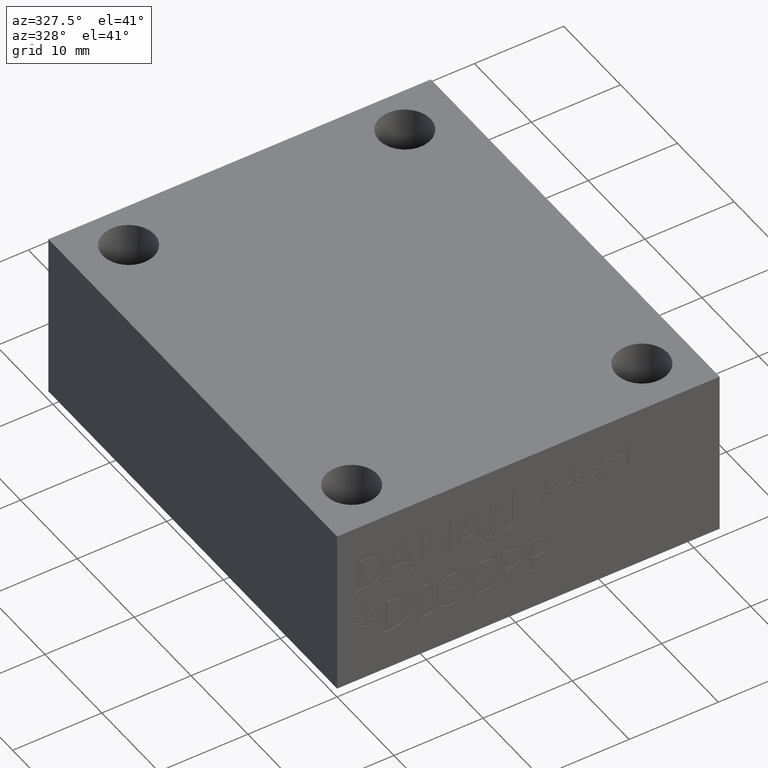
[diagram: clean part render]
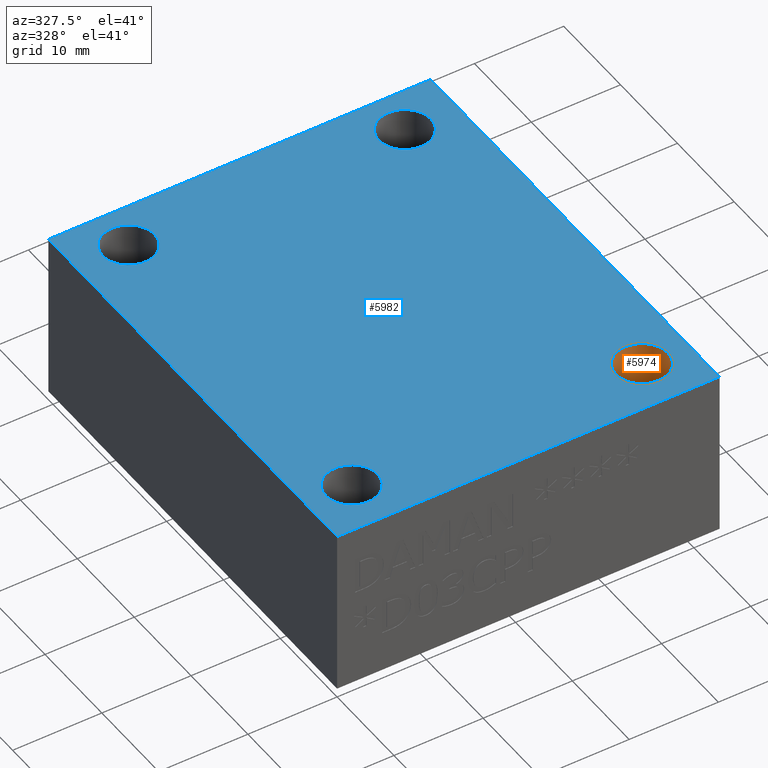
[diagram: same view with the hole feature highlighted: cylindrical wall and planar end face, labeled with their STEP entity ids]
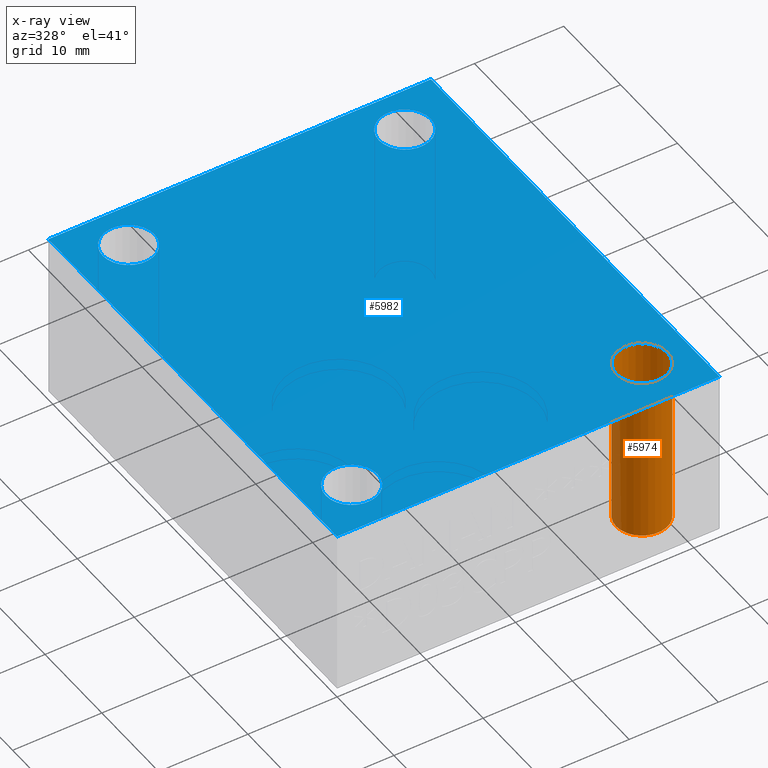
[diagram: x-ray of the same camera — body ghosted, the hole faces saturated]
A machine part, auxiliary view. The highlighted faces form one hole feature of diameter 5.7912 mm: the cylindrical wall (entity #5974, orange) and its adjacent planar end face (entity #5982, blue) — they share a circular edge in the B-rep.
The next image is the same camera in x-ray (body ghosted, the hole faces saturated) — the bore reads through the body.
Wall:
#35=CIRCLE('',#6227,2.8956);
#36=CIRCLE('',#6228,2.8956);
#37=CIRCLE('',#6229,2.8956);
#52=CYLINDRICAL_SURFACE('',#6226,2.8956);
#587=FACE_OUTER_BOUND('',#907,.T.);
#907=EDGE_LOOP('',(#5272,#5273,#5274,#5275,#5276));
#1544=LINE('',#10022,#2170);
#2170=VECTOR('',#7326,2.8956);
#2873=VERTEX_POINT('',#10017);
#2874=VERTEX_POINT('',#10018);
#2875=VERTEX_POINT('',#10021);
#3681=EDGE_CURVE('',#2873,#2874,#35,.T.);
#3682=EDGE_CURVE('',#2874,#2873,#36,.T.);
#3683=EDGE_CURVE('',#2874,#2875,#1544,.T.);
#3684=EDGE_CURVE('',#2875,#2875,#37,.T.);
#5272=ORIENTED_EDGE('',*,*,#3681,.F.);
#5273=ORIENTED_EDGE('',*,*,#3682,.F.);
#5274=ORIENTED_EDGE('',*,*,#3683,.T.);
#5275=ORIENTED_EDGE('',*,*,#3684,.F.);
#5276=ORIENTED_EDGE('',*,*,#3683,.F.);
#5974=ADVANCED_FACE('',(#587),#52,.F.);
#6226=AXIS2_PLACEMENT_3D('',#10016,#7320,#7321);
#6227=AXIS2_PLACEMENT_3D('',#10019,#7322,#7323);
#6228=AXIS2_PLACEMENT_3D('',#10020,#7324,#7325);
#6229=AXIS2_PLACEMENT_3D('',#10023,#7327,#7328);
#7320=DIRECTION('center_axis',(0.,0.,-1.));
#7321=DIRECTION('ref_axis',(1.,0.,0.));
#7322=DIRECTION('center_axis',(0.,0.,1.));
#7323=DIRECTION('ref_axis',(1.,0.,0.));
#7324=DIRECTION('center_axis',(0.,0.,1.));
#7325=DIRECTION('ref_axis',(1.,0.,0.));
#7326=DIRECTION('',(0.,0.,1.));
#7327=DIRECTION('center_axis',(0.,0.,-1.));
#7328=DIRECTION('ref_axis',(1.,0.,0.));
#10016=CARTESIAN_POINT('Origin',(37.6936,5.5372,69.1507431271711));
#10017=CARTESIAN_POINT('',(40.5892,5.5372,0.));
#10018=CARTESIAN_POINT('',(34.798,5.5372,-8.88178419700125E-15));
#10019=CARTESIAN_POINT('Origin',(37.6936,5.5372,0.));
#10020=CARTESIAN_POINT('Origin',(37.6936,5.5372,0.));
#10021=CARTESIAN_POINT('',(34.798,5.5372,19.05));
#10022=CARTESIAN_POINT('',(34.798,5.5372,69.1507431271711));
#10023=CARTESIAN_POINT('Origin',(37.6936,5.5372,19.05));
End face:
#37=CIRCLE('',#6229,2.8956);
#40=CIRCLE('',#6233,2.8956);
#43=CIRCLE('',#6237,2.8956);
#46=CIRCLE('',#6241,2.8956);
#79=FACE_BOUND('',#916,.T.);
#80=FACE_BOUND('',#917,.T.);
#81=FACE_BOUND('',#918,.T.);
#82=FACE_BOUND('',#919,.T.);
#298=PLANE('',#6246);
#595=FACE_OUTER_BOUND('',#915,.T.);
#915=EDGE_LOOP('',(#5307,#5308,#5309,#5310));
#916=EDGE_LOOP('',(#5311));
#917=EDGE_LOOP('',(#5312));
#918=EDGE_LOOP('',(#5313));
#919=EDGE_LOOP('',(#5314));
#1159=LINE('',#9052,#1785);
#1549=LINE('',#10052,#2175);
#1552=LINE('',#10058,#2178);
#1555=LINE('',#10062,#2181);
#1785=VECTOR('',#6599,10.);
#2175=VECTOR('',#7359,10.);
#2178=VECTOR('',#7364,10.);
#2181=VECTOR('',#7369,10.);
#2588=VERTEX_POINT('',#9049);
#2589=VERTEX_POINT('',#9051);
#2875=VERTEX_POINT('',#10021);
#2878=VERTEX_POINT('',#10029);
#2881=VERTEX_POINT('',#10037);
#2884=VERTEX_POINT('',#10045);
#2886=VERTEX_POINT('',#10051);
#2888=VERTEX_POINT('',#10057);
#3260=EDGE_CURVE('',#2589,#2588,#1159,.T.);
#3684=EDGE_CURVE('',#2875,#2875,#37,.T.);
#3688=EDGE_CURVE('',#2878,#2878,#40,.T.);
#3692=EDGE_CURVE('',#2881,#2881,#43,.T.);
#3696=EDGE_CURVE('',#2884,#2884,#46,.T.);
#3698=EDGE_CURVE('',#2886,#2589,#1549,.T.);
#3701=EDGE_CURVE('',#2888,#2886,#1552,.T.);
#3704=EDGE_CURVE('',#2588,#2888,#1555,.T.);
#5307=ORIENTED_EDGE('',*,*,#3260,.T.);
#5308=ORIENTED_EDGE('',*,*,#3704,.T.);
#5309=ORIENTED_EDGE('',*,*,#3701,.T.);
#5310=ORIENTED_EDGE('',*,*,#3698,.T.);
#5311=ORIENTED_EDGE('',*,*,#3684,.T.);
#5312=ORIENTED_EDGE('',*,*,#3688,.T.);
#5313=ORIENTED_EDGE('',*,*,#3692,.T.);
#5314=ORIENTED_EDGE('',*,*,#3696,.T.);
#5982=ADVANCED_FACE('',(#595,#79,#80,#81,#82),#298,.T.);
#6229=AXIS2_PLACEMENT_3D('',#10023,#7327,#7328);
#6233=AXIS2_PLACEMENT_3D('',#10031,#7336,#7337);
#6237=AXIS2_PLACEMENT_3D('',#10039,#7345,#7346);
#6241=AXIS2_PLACEMENT_3D('',#10047,#7354,#7355);
#6246=AXIS2_PLACEMENT_3D('',#10064,#7372,#7373);
#6599=DIRECTION('',(1.,0.,0.));
#7327=DIRECTION('center_axis',(0.,0.,-1.));
#7328=DIRECTION('ref_axis',(1.,0.,0.));
#7336=DIRECTION('center_axis',(0.,0.,-1.));
#7337=DIRECTION('ref_axis',(1.,0.,0.));
#7345=DIRECTION('center_axis',(0.,0.,-1.));
#7346=DIRECTION('ref_axis',(1.,0.,0.));
#7354=DIRECTION('center_axis',(0.,0.,-1.));
#7355=DIRECTION('ref_axis',(1.,0.,0.));
#7359=DIRECTION('',(0.,-1.,0.));
#7364=DIRECTION('',(-1.,0.,0.));
#7369=DIRECTION('',(0.,1.,0.));
#7372=DIRECTION('center_axis',(0.,0.,1.));
#7373=DIRECTION('ref_axis',(1.,0.,0.));
#9049=CARTESIAN_POINT('',(42.8752,0.,19.05));
#9051=CARTESIAN_POINT('',(0.,0.,19.05));
#9052=CARTESIAN_POINT('',(0.,0.,19.05));
#10021=CARTESIAN_POINT('',(34.798,5.5372,19.05));
#10023=CARTESIAN_POINT('Origin',(37.6936,5.5372,19.05));
#10029=CARTESIAN_POINT('',(3.048,46.0248,19.05));
#10031=CARTESIAN_POINT('Origin',(5.9436,46.0248,19.05));
#10037=CARTESIAN_POINT('',(34.0106,46.0248,19.05));
#10039=CARTESIAN_POINT('Origin',(36.9062,46.0248,19.05));
#10045=CARTESIAN_POINT('',(2.2606,5.5372,19.05));
#10047=CARTESIAN_POINT('Origin',(5.1562,5.5372,19.05));
#10051=CARTESIAN_POINT('',(0.,50.8,19.05));
#10052=CARTESIAN_POINT('',(0.,50.8,19.05));
#10057=CARTESIAN_POINT('',(42.8752,50.8,19.05));
#10058=CARTESIAN_POINT('',(42.8752,50.8,19.05));
#10062=CARTESIAN_POINT('',(42.8752,0.,19.05));
#10064=CARTESIAN_POINT('Origin',(21.4376,25.4,19.05));